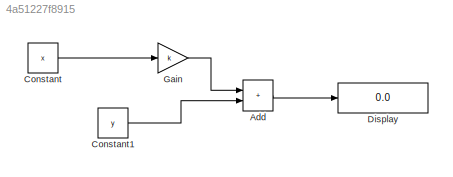
MODEL slx_4a51227f8915
KIND model
CONFIG AbsTol = auto
CONFIG EnableMultiTasking = off
CONFIG FixedStep = auto
CONFIG InitFcn = x=176;\ny=2;\nk=2;
CONFIG MaxStep = auto
CONFIG MinStep = auto
CONFIG RelTol = 1e-3
CONFIG SampleTimeConstraint = Unconstrained
CONFIG SolverName = VariableStepAuto
CONFIG StartFcn = x=10;
CONFIG StartTime = 0.0
CONFIG StopTime = inf
BLOCK [Sum] Add
  IconShape = rectangular
BLOCK [Constant] Constant
  Value = x
BLOCK [Constant] Constant1
  Value = y
BLOCK [Display] Display
  Decimation = 1
BLOCK [Gain] Gain
  Gain = k
LINE Add:1 -> Display:1
LINE Constant1:1 -> Add:2
LINE Constant:1 -> Gain:1
LINE Gain:1 -> Add:1
